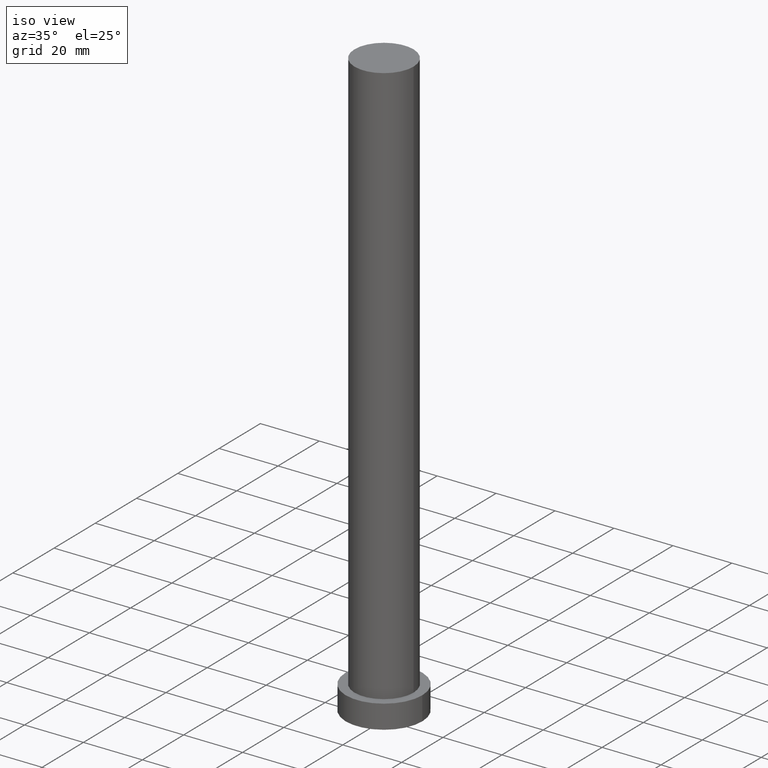
[diagram: clean part render]
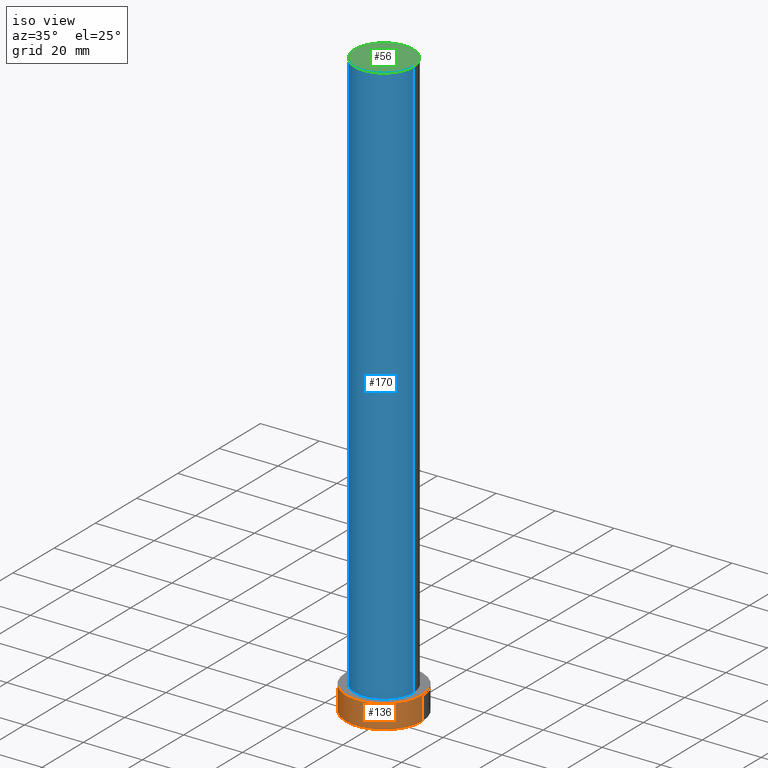
[diagram: same view with three faces highlighted in distinct colors, each labeled with its STEP entity id]
A machine part, iso view with three faces highlighted in distinct colors.
Their STEP definitions:

[orange] entity #136 — the highlighted cylindrical surface (partial cylindrical patch) has radius 13 mm, axis along (-0, -0, -1).
#1 = CARTESIAN_POINT ( 'NONE',  ( 13.00000000000000178, 1.592040838891559293E-15, 8.000000000000000000 ) ) ;
#2 = DIRECTION ( 'NONE',  ( -0.000000000000000000, -0.000000000000000000, -1.000000000000000000 ) ) ;
#14 = FACE_OUTER_BOUND ( 'NONE', #212, .T. ) ;
#28 = ORIENTED_EDGE ( 'NONE', *, *, #29, .T. ) ;
#29 = EDGE_CURVE ( 'NONE', #111, #114, #130, .T. ) ;
#30 = VERTEX_POINT ( 'NONE', #176 ) ;
#35 = EDGE_CURVE ( 'NONE', #111, #250, #126, .T. ) ;
#38 = CIRCLE ( 'NONE', #248, 13.00000000000000178 ) ;
#49 = DIRECTION ( 'NONE',  ( 1.000000000000000000, 0.000000000000000000, 0.000000000000000000 ) ) ;
#54 = ORIENTED_EDGE ( 'NONE', *, *, #35, .F. ) ;
#59 = CARTESIAN_POINT ( 'NONE',  ( 0.000000000000000000, 0.000000000000000000, 0.000000000000000000 ) ) ;
#69 = VECTOR ( 'NONE', #132, 1000.000000000000000 ) ;
#75 = EDGE_CURVE ( 'NONE', #250, #30, #109, .T. ) ;
#76 = DIRECTION ( 'NONE',  ( -0.000000000000000000, -0.000000000000000000, -1.000000000000000000 ) ) ;
#93 = ORIENTED_EDGE ( 'NONE', *, *, #75, .F. ) ;
#109 = LINE ( 'NONE', #117, #200 ) ;
#111 = VERTEX_POINT ( 'NONE', #184 ) ;
#112 = CARTESIAN_POINT ( 'NONE',  ( -13.00000000000000178, 0.000000000000000000, 8.000000000000000000 ) ) ;
#114 = VERTEX_POINT ( 'NONE', #198 ) ;
#117 = CARTESIAN_POINT ( 'NONE',  ( 13.00000000000000178, 1.592040838891559293E-15, 8.000000000000000000 ) ) ;
#120 = CYLINDRICAL_SURFACE ( 'NONE', #215, 13.00000000000000178 ) ;
#126 = CIRCLE ( 'NONE', #158, 13.00000000000000178 ) ;
#130 = LINE ( 'NONE', #112, #69 ) ;
#132 = DIRECTION ( 'NONE',  ( -0.000000000000000000, -0.000000000000000000, -1.000000000000000000 ) ) ;
#136 = ADVANCED_FACE ( 'NONE', ( #14 ), #120, .T. ) ;
#142 = DIRECTION ( 'NONE',  ( 0.000000000000000000, 0.000000000000000000, 1.000000000000000000 ) ) ;
#158 = AXIS2_PLACEMENT_3D ( 'NONE', #192, #244, #49 ) ;
#176 = CARTESIAN_POINT ( 'NONE',  ( 13.00000000000000178, 1.592040838891559293E-15, 0.000000000000000000 ) ) ;
#184 = CARTESIAN_POINT ( 'NONE',  ( -13.00000000000000178, 0.000000000000000000, 8.000000000000000000 ) ) ;
#192 = CARTESIAN_POINT ( 'NONE',  ( 0.000000000000000000, 0.000000000000000000, 8.000000000000000000 ) ) ;
#196 = DIRECTION ( 'NONE',  ( -1.000000000000000000, 0.000000000000000000, 0.000000000000000000 ) ) ;
#198 = CARTESIAN_POINT ( 'NONE',  ( -13.00000000000000178, 0.000000000000000000, 0.000000000000000000 ) ) ;
#200 = VECTOR ( 'NONE', #76, 1000.000000000000000 ) ;
#212 = EDGE_LOOP ( 'NONE', ( #93, #54, #28, #247 ) ) ;
#215 = AXIS2_PLACEMENT_3D ( 'NONE', #232, #2, #196 ) ;
#219 = DIRECTION ( 'NONE',  ( 1.000000000000000000, 0.000000000000000000, 0.000000000000000000 ) ) ;
#232 = CARTESIAN_POINT ( 'NONE',  ( 0.000000000000000000, 0.000000000000000000, 8.000000000000000000 ) ) ;
#234 = EDGE_CURVE ( 'NONE', #114, #30, #38, .T. ) ;
#244 = DIRECTION ( 'NONE',  ( 0.000000000000000000, 0.000000000000000000, 1.000000000000000000 ) ) ;
#247 = ORIENTED_EDGE ( 'NONE', *, *, #234, .T. ) ;
#248 = AXIS2_PLACEMENT_3D ( 'NONE', #59, #142, #219 ) ;
#250 = VERTEX_POINT ( 'NONE', #1 ) ;

[blue] entity #170 — the highlighted cylindrical surface (edge-blend (fillet) strip) has radius 10 mm, axis along (-0, -0, -1).
#7 = ORIENTED_EDGE ( 'NONE', *, *, #24, .T. ) ;
#10 = AXIS2_PLACEMENT_3D ( 'NONE', #233, #16, #197 ) ;
#16 = DIRECTION ( 'NONE',  ( 0.000000000000000000, 0.000000000000000000, 1.000000000000000000 ) ) ;
#17 = CARTESIAN_POINT ( 'NONE',  ( 10.00000000000000000, 1.224646799147353256E-15, 200.0000000000000000 ) ) ;
#24 = EDGE_CURVE ( 'NONE', #246, #193, #50, .T. ) ;
#31 = VECTOR ( 'NONE', #92, 1000.000000000000000 ) ;
#34 = DIRECTION ( 'NONE',  ( -0.000000000000000000, -0.000000000000000000, -1.000000000000000000 ) ) ;
#36 = CARTESIAN_POINT ( 'NONE',  ( 0.000000000000000000, 0.000000000000000000, 200.0000000000000000 ) ) ;
#44 = CIRCLE ( 'NONE', #144, 10.00000000000000000 ) ;
#50 = LINE ( 'NONE', #116, #31 ) ;
#53 = VERTEX_POINT ( 'NONE', #249 ) ;
#55 = CARTESIAN_POINT ( 'NONE',  ( -10.00000000000000000, 0.000000000000000000, 200.0000000000000000 ) ) ;
#57 = DIRECTION ( 'NONE',  ( -1.000000000000000000, 0.000000000000000000, 0.000000000000000000 ) ) ;
#61 = CYLINDRICAL_SURFACE ( 'NONE', #183, 10.00000000000000000 ) ;
#78 = CARTESIAN_POINT ( 'NONE',  ( -10.00000000000000000, 0.000000000000000000, 8.000000000000000000 ) ) ;
#82 = DIRECTION ( 'NONE',  ( 1.000000000000000000, 0.000000000000000000, 0.000000000000000000 ) ) ;
#84 = EDGE_CURVE ( 'NONE', #53, #209, #160, .T. ) ;
#92 = DIRECTION ( 'NONE',  ( -0.000000000000000000, -0.000000000000000000, -1.000000000000000000 ) ) ;
#95 = ORIENTED_EDGE ( 'NONE', *, *, #148, .F. ) ;
#116 = CARTESIAN_POINT ( 'NONE',  ( -10.00000000000000000, 0.000000000000000000, 200.0000000000000000 ) ) ;
#119 = CARTESIAN_POINT ( 'NONE',  ( 0.000000000000000000, 0.000000000000000000, 200.0000000000000000 ) ) ;
#134 = ORIENTED_EDGE ( 'NONE', *, *, #84, .F. ) ;
#144 = AXIS2_PLACEMENT_3D ( 'NONE', #36, #213, #82 ) ;
#148 = EDGE_CURVE ( 'NONE', #246, #53, #44, .T. ) ;
#160 = LINE ( 'NONE', #17, #243 ) ;
#170 = ADVANCED_FACE ( 'NONE', ( #254 ), #61, .T. ) ;
#183 = AXIS2_PLACEMENT_3D ( 'NONE', #119, #34, #57 ) ;
#190 = ORIENTED_EDGE ( 'NONE', *, *, #217, .T. ) ;
#193 = VERTEX_POINT ( 'NONE', #78 ) ;
#197 = DIRECTION ( 'NONE',  ( 1.000000000000000000, 0.000000000000000000, 0.000000000000000000 ) ) ;
#209 = VERTEX_POINT ( 'NONE', #253 ) ;
#213 = DIRECTION ( 'NONE',  ( 0.000000000000000000, 0.000000000000000000, 1.000000000000000000 ) ) ;
#214 = DIRECTION ( 'NONE',  ( -0.000000000000000000, -0.000000000000000000, -1.000000000000000000 ) ) ;
#217 = EDGE_CURVE ( 'NONE', #193, #209, #220, .T. ) ;
#220 = CIRCLE ( 'NONE', #10, 10.00000000000000000 ) ;
#226 = EDGE_LOOP ( 'NONE', ( #134, #95, #7, #190 ) ) ;
#233 = CARTESIAN_POINT ( 'NONE',  ( 0.000000000000000000, 0.000000000000000000, 8.000000000000000000 ) ) ;
#243 = VECTOR ( 'NONE', #214, 1000.000000000000000 ) ;
#246 = VERTEX_POINT ( 'NONE', #55 ) ;
#249 = CARTESIAN_POINT ( 'NONE',  ( 10.00000000000000000, 1.224646799147353256E-15, 200.0000000000000000 ) ) ;
#253 = CARTESIAN_POINT ( 'NONE',  ( 10.00000000000000000, 1.224646799147353256E-15, 8.000000000000000000 ) ) ;
#254 = FACE_OUTER_BOUND ( 'NONE', #226, .T. ) ;

[green] entity #56 — the highlighted planar face has unit normal (0, 0, 1).
#20 = AXIS2_PLACEMENT_3D ( 'NONE', #121, #118, #178 ) ;
#26 = DIRECTION ( 'NONE',  ( 1.000000000000000000, 0.000000000000000000, -0.000000000000000000 ) ) ;
#36 = CARTESIAN_POINT ( 'NONE',  ( 0.000000000000000000, 0.000000000000000000, 200.0000000000000000 ) ) ;
#44 = CIRCLE ( 'NONE', #144, 10.00000000000000000 ) ;
#53 = VERTEX_POINT ( 'NONE', #249 ) ;
#55 = CARTESIAN_POINT ( 'NONE',  ( -10.00000000000000000, 0.000000000000000000, 200.0000000000000000 ) ) ;
#56 = ADVANCED_FACE ( 'NONE', ( #153 ), #189, .T. ) ;
#63 = EDGE_LOOP ( 'NONE', ( #221, #231 ) ) ;
#82 = DIRECTION ( 'NONE',  ( 1.000000000000000000, 0.000000000000000000, 0.000000000000000000 ) ) ;
#100 = EDGE_CURVE ( 'NONE', #53, #246, #113, .T. ) ;
#113 = CIRCLE ( 'NONE', #20, 10.00000000000000000 ) ;
#118 = DIRECTION ( 'NONE',  ( 0.000000000000000000, 0.000000000000000000, 1.000000000000000000 ) ) ;
#121 = CARTESIAN_POINT ( 'NONE',  ( 0.000000000000000000, 0.000000000000000000, 200.0000000000000000 ) ) ;
#144 = AXIS2_PLACEMENT_3D ( 'NONE', #36, #213, #82 ) ;
#148 = EDGE_CURVE ( 'NONE', #246, #53, #44, .T. ) ;
#153 = FACE_OUTER_BOUND ( 'NONE', #63, .T. ) ;
#156 = CARTESIAN_POINT ( 'NONE',  ( 0.000000000000000000, 0.000000000000000000, 200.0000000000000000 ) ) ;
#163 = AXIS2_PLACEMENT_3D ( 'NONE', #156, #207, #26 ) ;
#178 = DIRECTION ( 'NONE',  ( 1.000000000000000000, 0.000000000000000000, 0.000000000000000000 ) ) ;
#189 = PLANE ( 'NONE',  #163 ) ;
#207 = DIRECTION ( 'NONE',  ( 0.000000000000000000, 0.000000000000000000, 1.000000000000000000 ) ) ;
#213 = DIRECTION ( 'NONE',  ( 0.000000000000000000, 0.000000000000000000, 1.000000000000000000 ) ) ;
#221 = ORIENTED_EDGE ( 'NONE', *, *, #148, .T. ) ;
#231 = ORIENTED_EDGE ( 'NONE', *, *, #100, .T. ) ;
#246 = VERTEX_POINT ( 'NONE', #55 ) ;
#249 = CARTESIAN_POINT ( 'NONE',  ( 10.00000000000000000, 1.224646799147353256E-15, 200.0000000000000000 ) ) ;